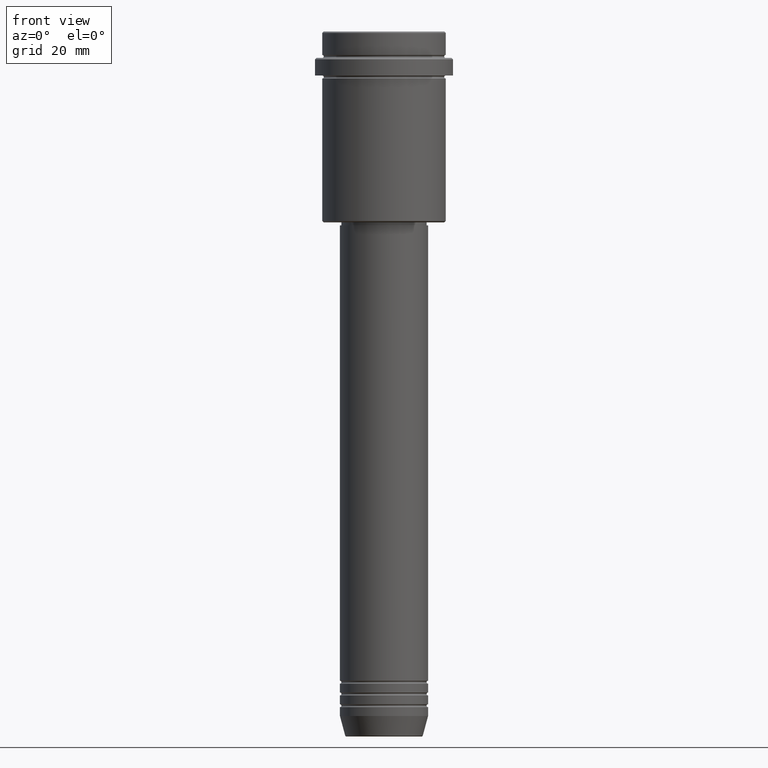
[diagram: clean part render]
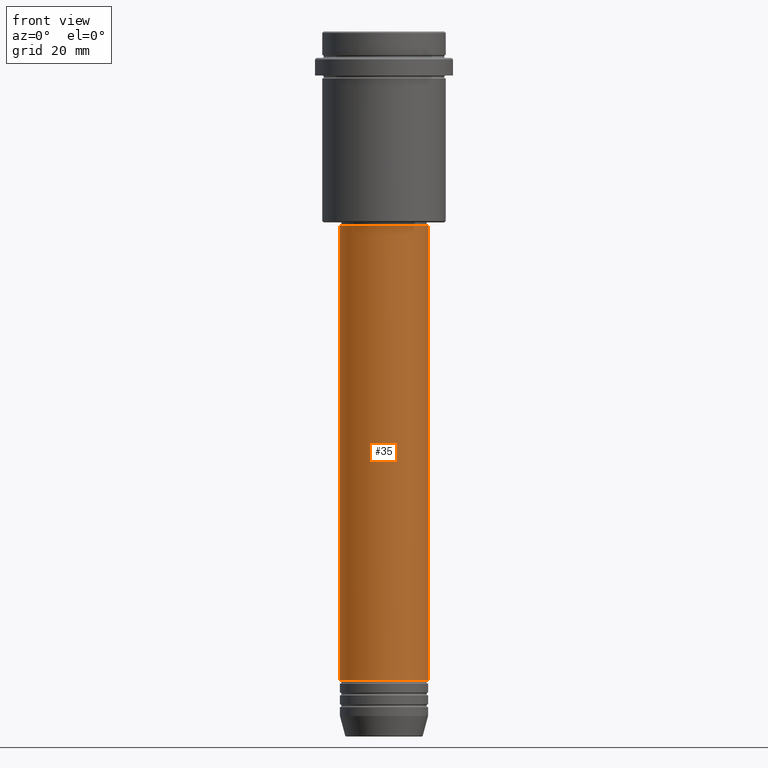
[diagram: same view with one face highlighted and labeled with its STEP entity id]
A machine part, front view. The second image highlights one B-rep face of the part: STEP entity #35.
In plain terms, the highlighted cylindrical surface (partial cylindrical patch) has radius 15 mm, axis along (-0, -0, 1).
Its self-contained STEP definition (entity closure, byte-faithful):
#35 = ADVANCED_FACE ( 'NONE', ( #977 ), #868, .T. ) ;
#61 = CARTESIAN_POINT ( 'NONE',  ( -15.00000000000000000, 1.836970198721029589E-15, 0.000000000000000000 ) ) ;
#217 = EDGE_CURVE ( 'NONE', #1015, #497, #682, .T. ) ;
#233 = AXIS2_PLACEMENT_3D ( 'NONE', #453, #1207, #462 ) ;
#264 = EDGE_CURVE ( 'NONE', #796, #1210, #826, .T. ) ;
#281 = ORIENTED_EDGE ( 'NONE', *, *, #217, .T. ) ;
#317 = VECTOR ( 'NONE', #389, 1000.000000000000000 ) ;
#376 = CARTESIAN_POINT ( 'NONE',  ( 15.00000000000000000, 0.000000000000000000, 0.000000000000000000 ) ) ;
#389 = DIRECTION ( 'NONE',  ( -0.000000000000000000, -0.000000000000000000, 1.000000000000000000 ) ) ;
#433 = DIRECTION ( 'NONE',  ( -0.000000000000000000, -0.000000000000000000, 1.000000000000000000 ) ) ;
#440 = AXIS2_PLACEMENT_3D ( 'NONE', #1271, #1264, #1176 ) ;
#453 = CARTESIAN_POINT ( 'NONE',  ( 0.000000000000000000, 0.000000000000000000, -220.9999999999998579 ) ) ;
#462 = DIRECTION ( 'NONE',  ( 1.000000000000000000, 0.000000000000000000, 0.000000000000000000 ) ) ;
#479 = CARTESIAN_POINT ( 'NONE',  ( -15.00000000000000000, 1.836970198721029589E-15, -220.9999999999998579 ) ) ;
#497 = VERTEX_POINT ( 'NONE', #1286 ) ;
#531 = VECTOR ( 'NONE', #814, 1000.000000000000000 ) ;
#535 = ORIENTED_EDGE ( 'NONE', *, *, #675, .T. ) ;
#571 = EDGE_CURVE ( 'NONE', #1210, #497, #1368, .T. ) ;
#655 = ORIENTED_EDGE ( 'NONE', *, *, #264, .F. ) ;
#675 = EDGE_CURVE ( 'NONE', #796, #1015, #1031, .T. ) ;
#677 = DIRECTION ( 'NONE',  ( 1.000000000000000000, 0.000000000000000000, 0.000000000000000000 ) ) ;
#682 = LINE ( 'NONE', #376, #531 ) ;
#703 = ORIENTED_EDGE ( 'NONE', *, *, #571, .F. ) ;
#796 = VERTEX_POINT ( 'NONE', #479 ) ;
#814 = DIRECTION ( 'NONE',  ( -0.000000000000000000, -0.000000000000000000, 1.000000000000000000 ) ) ;
#826 = LINE ( 'NONE', #61, #317 ) ;
#868 = CYLINDRICAL_SURFACE ( 'NONE', #1283, 15.00000000000000000 ) ;
#930 = CARTESIAN_POINT ( 'NONE',  ( 15.00000000000000000, 0.000000000000000000, -220.9999999999998579 ) ) ;
#977 = FACE_OUTER_BOUND ( 'NONE', #1131, .T. ) ;
#1015 = VERTEX_POINT ( 'NONE', #930 ) ;
#1021 = CARTESIAN_POINT ( 'NONE',  ( -15.00000000000000000, 1.836970198721029589E-15, -66.00000000000000000 ) ) ;
#1031 = CIRCLE ( 'NONE', #233, 15.00000000000000000 ) ;
#1112 = CARTESIAN_POINT ( 'NONE',  ( 0.000000000000000000, 0.000000000000000000, 0.000000000000000000 ) ) ;
#1131 = EDGE_LOOP ( 'NONE', ( #655, #535, #281, #703 ) ) ;
#1176 = DIRECTION ( 'NONE',  ( 1.000000000000000000, 0.000000000000000000, 0.000000000000000000 ) ) ;
#1207 = DIRECTION ( 'NONE',  ( -0.000000000000000000, -0.000000000000000000, 1.000000000000000000 ) ) ;
#1210 = VERTEX_POINT ( 'NONE', #1021 ) ;
#1264 = DIRECTION ( 'NONE',  ( -0.000000000000000000, -0.000000000000000000, 1.000000000000000000 ) ) ;
#1271 = CARTESIAN_POINT ( 'NONE',  ( 0.000000000000000000, 0.000000000000000000, -66.00000000000000000 ) ) ;
#1283 = AXIS2_PLACEMENT_3D ( 'NONE', #1112, #433, #677 ) ;
#1286 = CARTESIAN_POINT ( 'NONE',  ( 15.00000000000000000, 0.000000000000000000, -66.00000000000000000 ) ) ;
#1368 = CIRCLE ( 'NONE', #440, 15.00000000000000000 ) ;